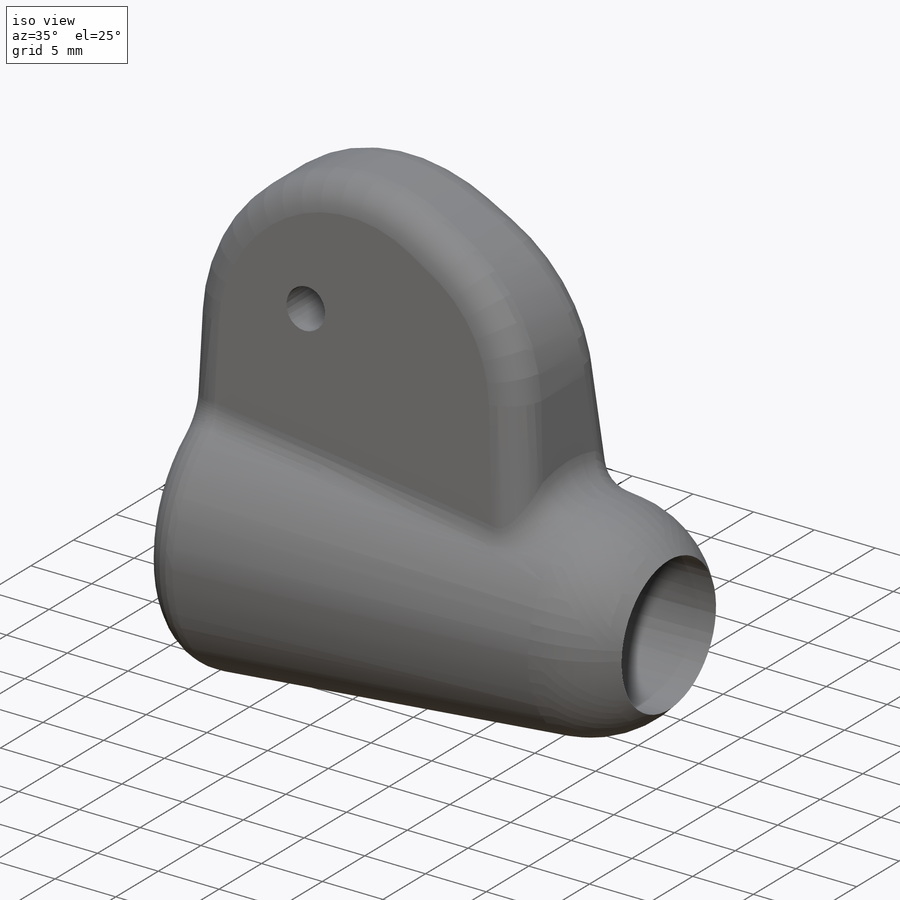
[diagram: iso view]
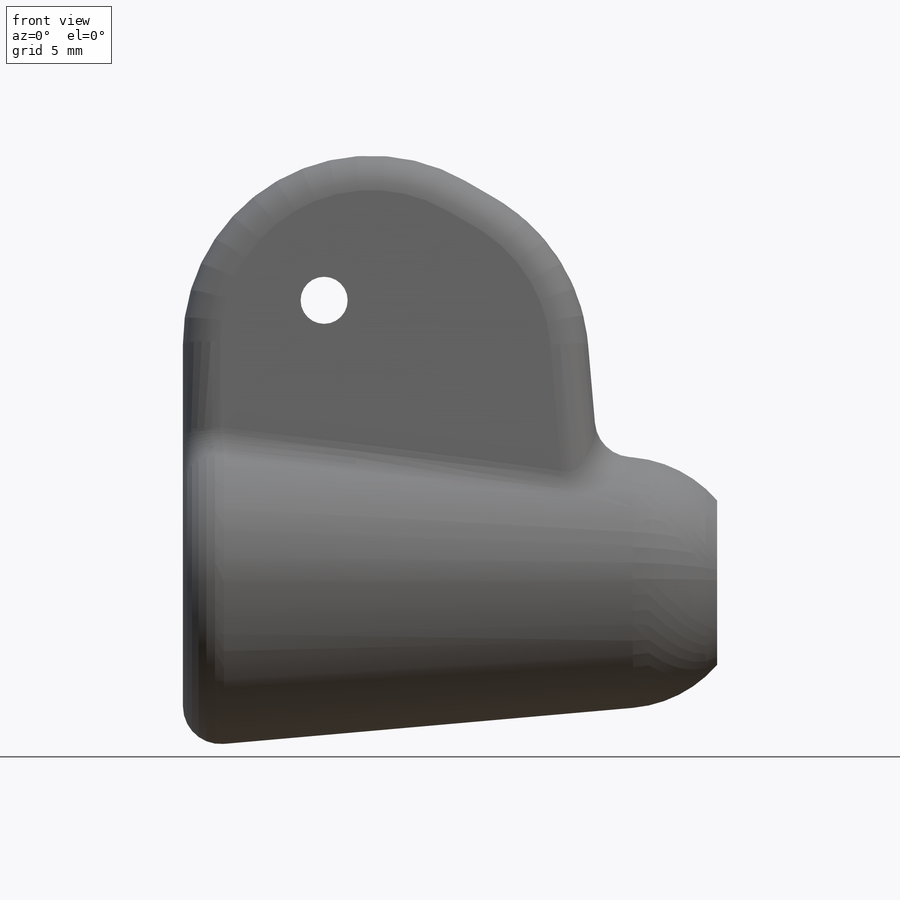
[diagram: front view]
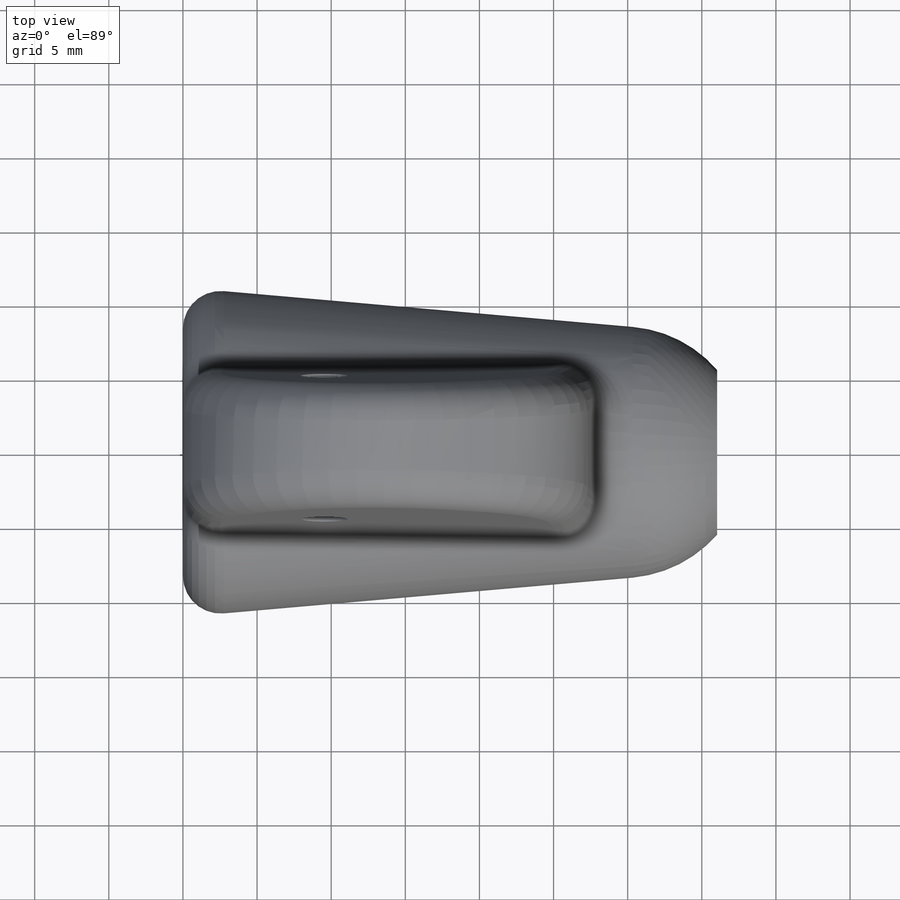
[diagram: top view]
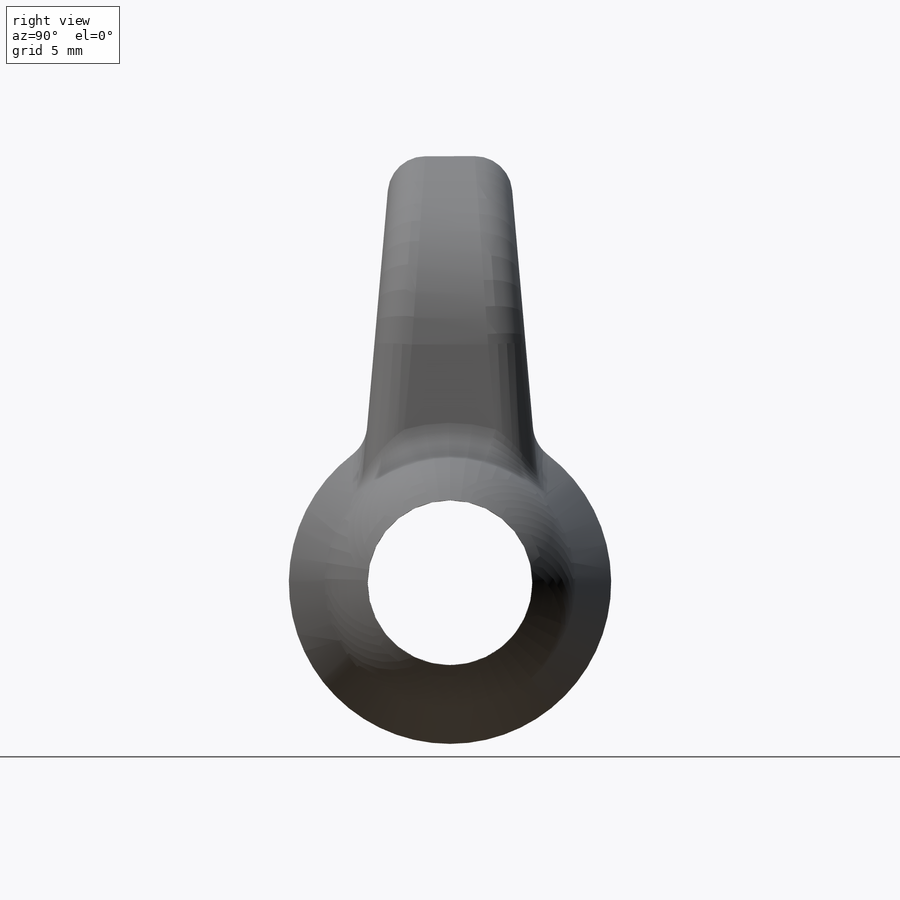
[diagram: right view]
SOLIDWORKS PART (.sldprt)
format: sldprt  version: not decoded by parser v0  size: 496,128 bytes
history: native  units: mm
features: sketch x6, fillet x4, cut_extrude x3, material x1, revolve x1, extrude x1 (+11 scaffold rows collapsed)
feature tree (27):
  scaffold x11  (default folders/planes/origin — collapsed)
  material  "Material <not specified>"
  sketch  "Sketch5"
  sketch  "Sketch6"  dims[c1.D1=11.1125mm c1.D2=9.525mm c2.D2=85.0deg c2.D3=50.8mm]
  revolve  "Revolve1"  Angle=360deg
  sketch  "Sketch8"  dims[D1=11.1125mm]
  cut_extrude  "Cut-Extrude2"  Depth=25.4mm
  sketch  "Sketch9"  dims[D1=6.35mm D2=38.1mm]
  extrude  "Boss-Extrude2"  Depth=38.1mm
  sketch  "Sketch13"
  cut_extrude  "Cut-Extrude3"  [1 undecoded]
  sketch  "Sketch14"  dims[c1.D2=3.175mm c1.D1=~28.544232mm c2.D1=~66.914215deg c3.D1=~16.868923mm c4.D1=60.0deg c4.D3=9.525mm c4.D4=19.05mm c4.D5=31.75mm c4.D6=11.43mm]
  cut_extrude  "Cut-Extrude4"  [1 undecoded]
  fillet  "Fillet2"  Radius=12.7mm
  fillet  "Fillet3"  Radius=2.54mm
  fillet  "Fillet4"  Radius=2.54mm
  fillet  "Fillet5"  Radius=2.54mm
decode coverage: 11 of 15 modeling features carry decoded parameters
note: ~ marks probable driven/reference dimensions
note: 2 parameter values undecoded
note: suppression state not decoded; provenance and decode notes live in map.json
